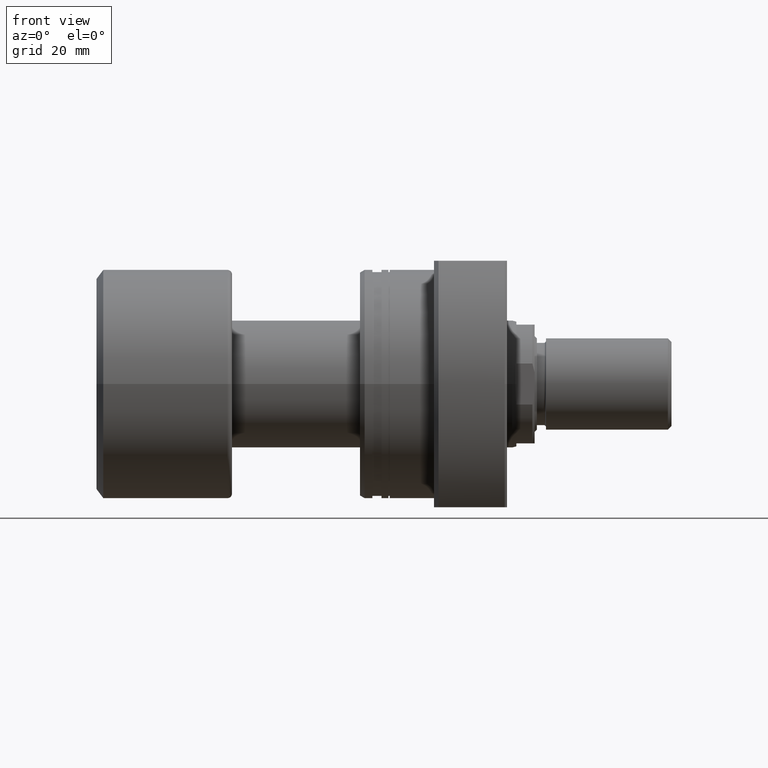
[diagram: clean part render]
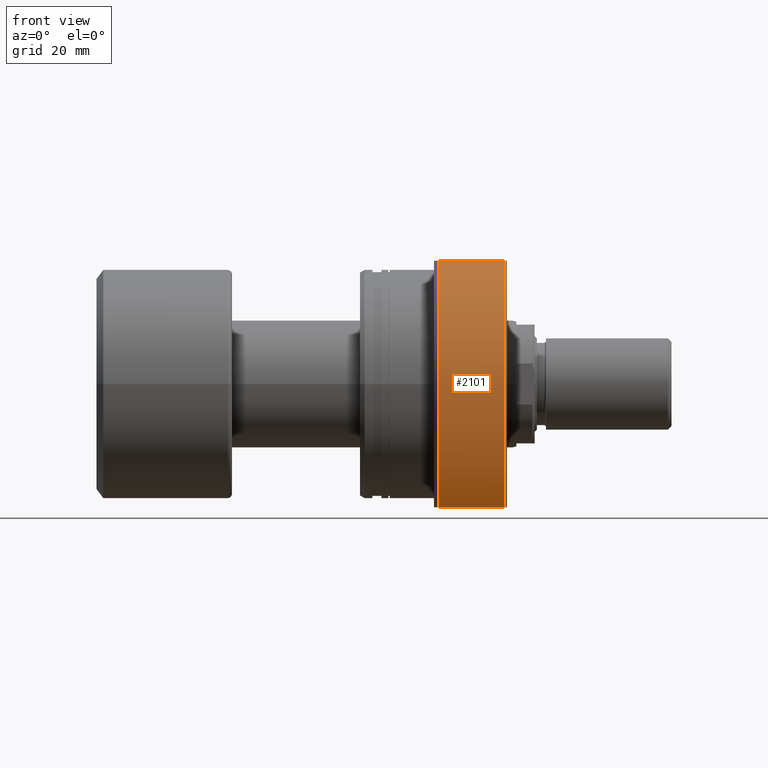
[diagram: same view with one face highlighted and labeled with its STEP entity id]
A machine part, front view. The second image highlights one B-rep face of the part: STEP entity #2101.
In plain terms, the highlighted cylindrical surface (partial cylindrical patch) has radius 41.5 mm, axis along (1, 0, 0).
Its self-contained STEP definition (entity closure, byte-faithful):
#23 = VERTEX_POINT ( 'NONE', #2192 ) ;
#97 = DIRECTION ( 'NONE',  ( 0.000000000000000000, 1.000000000000000000, 0.000000000000000000 ) ) ;
#123 = AXIS2_PLACEMENT_3D ( 'NONE', #2137, #2170, #3306 ) ;
#245 = LINE ( 'NONE', #3170, #1241 ) ;
#398 = CARTESIAN_POINT ( 'NONE',  ( 31.70000000000008100, 9.283355192667019525E-16, 0.000000000000000000 ) ) ;
#481 = AXIS2_PLACEMENT_3D ( 'NONE', #707, #2400, #1832 ) ;
#490 = AXIS2_PLACEMENT_3D ( 'NONE', #1544, #1521, #3514 ) ;
#707 = CARTESIAN_POINT ( 'NONE',  ( 31.70000000000008100, 9.283355192667019525E-16, 0.000000000000000000 ) ) ;
#708 = EDGE_CURVE ( 'NONE', #23, #2445, #2654, .T. ) ;
#735 = EDGE_CURVE ( 'NONE', #23, #3532, #245, .T. ) ;
#752 = DIRECTION ( 'NONE',  ( 1.000000000000000000, -2.886466111666351885E-14, -0.000000000000000000 ) ) ;
#872 = VERTEX_POINT ( 'NONE', #1429 ) ;
#1241 = VECTOR ( 'NONE', #1387, 1000.000000000000000 ) ;
#1252 = CARTESIAN_POINT ( 'NONE',  ( 31.70000000000006679, -31.51586901863873180, 27.00000000000001776 ) ) ;
#1311 = LINE ( 'NONE', #2440, #1973 ) ;
#1373 = EDGE_CURVE ( 'NONE', #2031, #872, #3079, .T. ) ;
#1387 = DIRECTION ( 'NONE',  ( 1.000000000000000000, -2.886466111666351885E-14, -0.000000000000000000 ) ) ;
#1429 = CARTESIAN_POINT ( 'NONE',  ( 31.70000000000006679, -31.51586901863874601, -27.00000000000001066 ) ) ;
#1521 = DIRECTION ( 'NONE',  ( 1.000000000000000000, 2.928503215352364811E-17, -0.000000000000000000 ) ) ;
#1544 = CARTESIAN_POINT ( 'NONE',  ( 32.20000000000000284, 9.429780353434613113E-16, 0.000000000000000000 ) ) ;
#1832 = DIRECTION ( 'NONE',  ( 0.000000000000000000, 1.000000000000000000, 0.000000000000000000 ) ) ;
#1883 = ORIENTED_EDGE ( 'NONE', *, *, #708, .T. ) ;
#1973 = VECTOR ( 'NONE', #752, 1000.000000000000000 ) ;
#2031 = VERTEX_POINT ( 'NONE', #2466 ) ;
#2101 = ADVANCED_FACE ( 'NONE', ( #2388 ), #2368, .T. ) ;
#2110 = ORIENTED_EDGE ( 'NONE', *, *, #2479, .F. ) ;
#2137 = CARTESIAN_POINT ( 'NONE',  ( 17.19999999999998508, 5.037025530406062939E-16, 0.000000000000000000 ) ) ;
#2170 = DIRECTION ( 'NONE',  ( 1.000000000000000000, 2.928503215352364811E-17, -0.000000000000000000 ) ) ;
#2192 = CARTESIAN_POINT ( 'NONE',  ( 17.19999999999998508, -31.51586901863831613, 27.00000000000001776 ) ) ;
#2368 = CYLINDRICAL_SURFACE ( 'NONE', #490, 41.49999999999991473 ) ;
#2388 = FACE_OUTER_BOUND ( 'NONE', #3353, .T. ) ;
#2400 = DIRECTION ( 'NONE',  ( 1.000000000000000000, 2.928503215352364811E-17, -0.000000000000000000 ) ) ;
#2440 = CARTESIAN_POINT ( 'NONE',  ( -2.109423746787797427E-12, -31.51586901863782941, -27.00000000000001066 ) ) ;
#2445 = VERTEX_POINT ( 'NONE', #3360 ) ;
#2466 = CARTESIAN_POINT ( 'NONE',  ( 31.70000000000008100, -41.49999999999991473, 0.000000000000000000 ) ) ;
#2479 = EDGE_CURVE ( 'NONE', #3532, #2031, #3026, .T. ) ;
#2612 = AXIS2_PLACEMENT_3D ( 'NONE', #398, #3471, #97 ) ;
#2639 = ORIENTED_EDGE ( 'NONE', *, *, #2781, .T. ) ;
#2654 = CIRCLE ( 'NONE', #123, 41.49999999999991473 ) ;
#2671 = ORIENTED_EDGE ( 'NONE', *, *, #735, .F. ) ;
#2781 = EDGE_CURVE ( 'NONE', #2445, #872, #1311, .T. ) ;
#3026 = CIRCLE ( 'NONE', #2612, 41.49999999999991473 ) ;
#3079 = CIRCLE ( 'NONE', #481, 41.49999999999991473 ) ;
#3170 = CARTESIAN_POINT ( 'NONE',  ( -2.109423746787797427E-12, -31.51586901863781520, 27.00000000000001776 ) ) ;
#3306 = DIRECTION ( 'NONE',  ( 0.000000000000000000, 1.000000000000000000, 0.000000000000000000 ) ) ;
#3353 = EDGE_LOOP ( 'NONE', ( #2671, #1883, #2639, #3598, #2110 ) ) ;
#3360 = CARTESIAN_POINT ( 'NONE',  ( 17.19999999999998508, -31.51586901863833035, -27.00000000000001066 ) ) ;
#3471 = DIRECTION ( 'NONE',  ( 1.000000000000000000, 2.928503215352364811E-17, -0.000000000000000000 ) ) ;
#3514 = DIRECTION ( 'NONE',  ( 0.000000000000000000, 1.000000000000000000, 0.000000000000000000 ) ) ;
#3532 = VERTEX_POINT ( 'NONE', #1252 ) ;
#3598 = ORIENTED_EDGE ( 'NONE', *, *, #1373, .F. ) ;